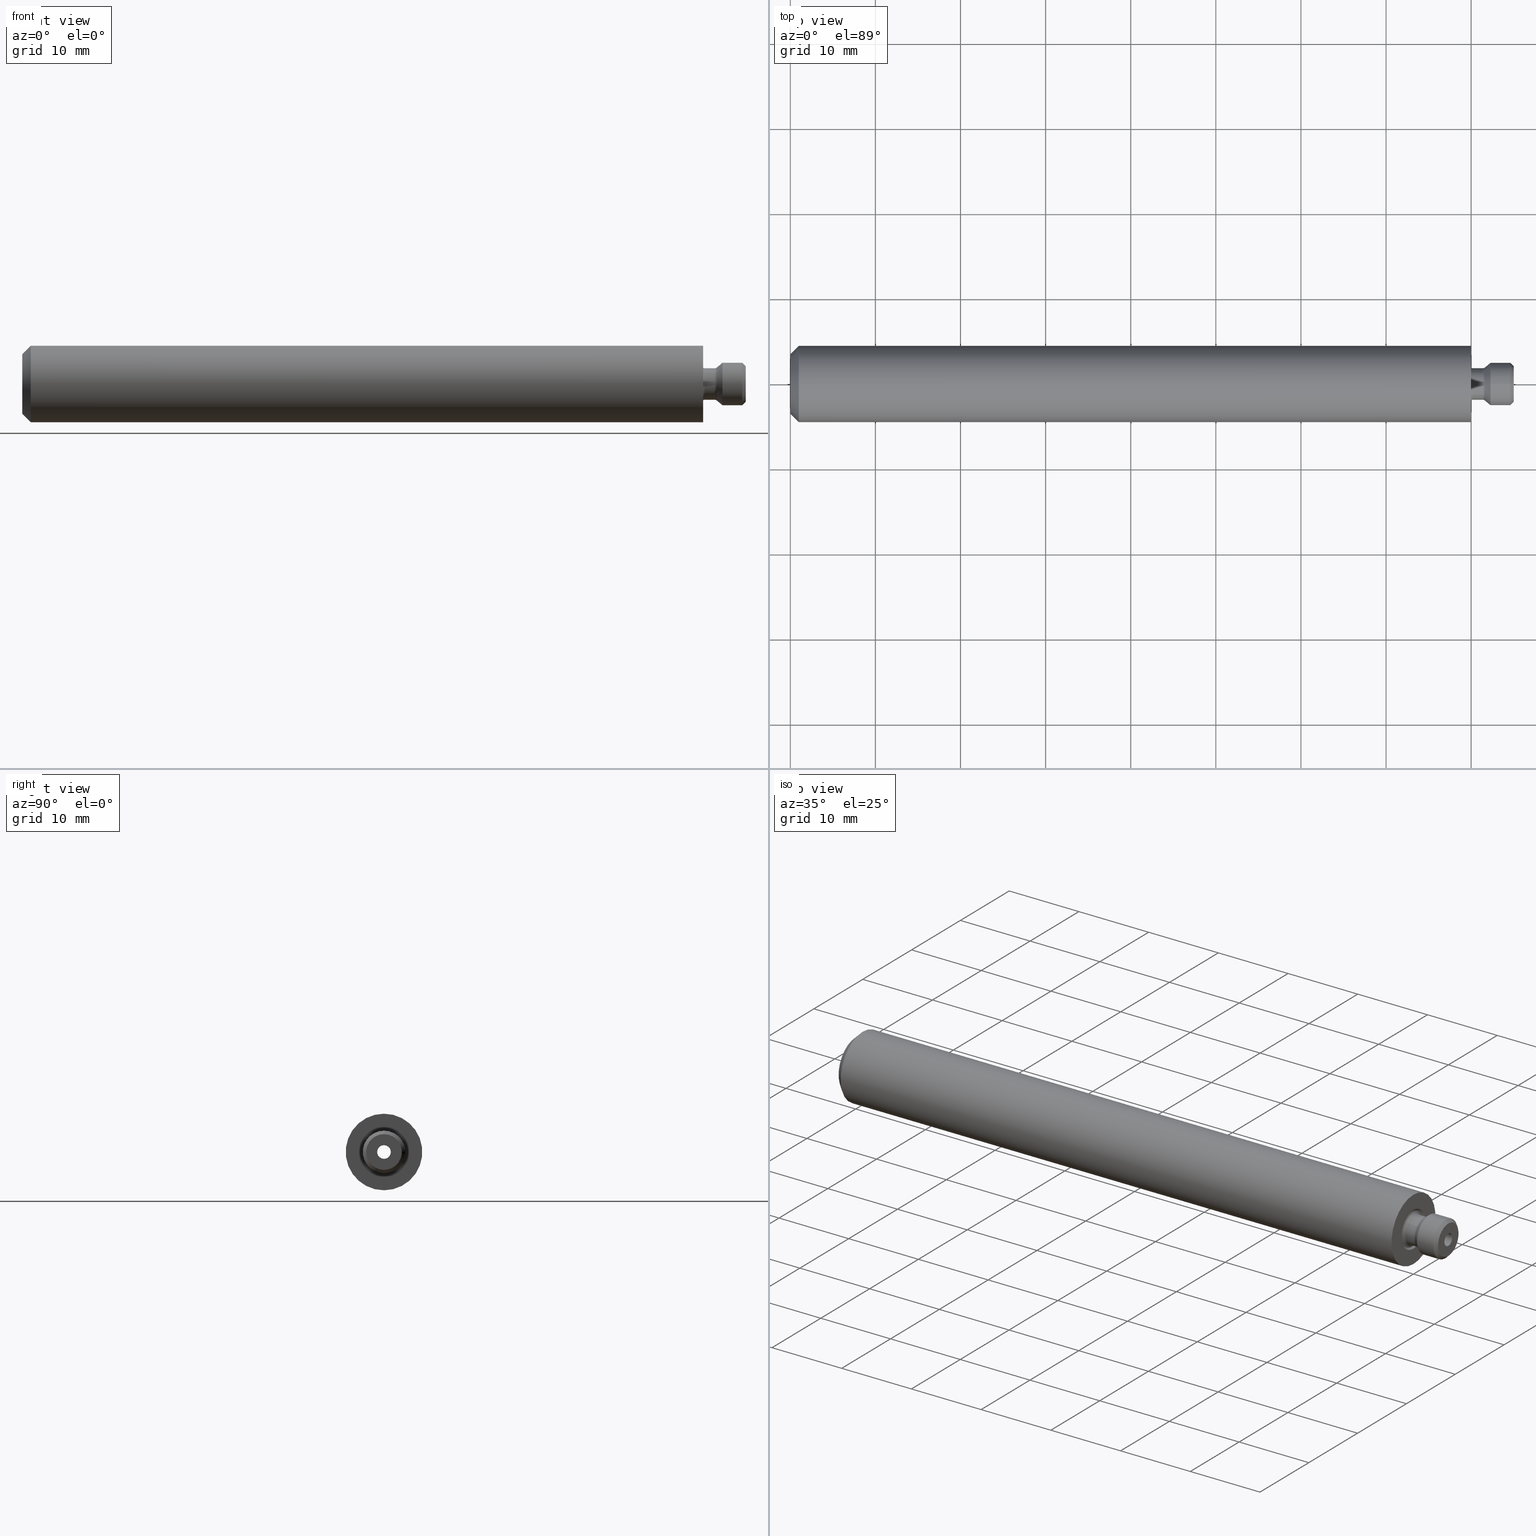
[diagram: canonical four-view strip — front | top / right | iso, engineering-drawing reading convention]
A machine part, canonical four-view strip (front | top / right | iso — engineering-drawing reading convention). The complete STEP part file that produces these views, byte-faithful:
ISO-10303-21;
HEADER;
FILE_DESCRIPTION (( 'STEP AP214' ),
    '1' );
FILE_NAME ('U09.HS5.K01.080.STEP',
    '2020-08-14T10:52:24',
    ( '' ),
    ( '' ),
    'SwSTEP 2.0',
    'SolidWorks 2017',
    '' );
FILE_SCHEMA (( 'AUTOMOTIVE_DESIGN' ));
ENDSEC;

DATA;
#1 = CONICAL_SURFACE ( 'NONE', #236, 2.749999999999999600, 0.6981317007977331200 ) ;
#2 = CIRCLE ( 'NONE', #95, 1.499999999999989100 ) ;
#3 = CIRCLE ( 'NONE', #363, 1.849999999999999600 ) ;
#4 = AXIS2_PLACEMENT_3D ( 'NONE', #130, #169, #480 ) ;
#5 = AXIS2_PLACEMENT_3D ( 'NONE', #137, #349, #213 ) ;
#6 = VERTEX_POINT ( 'NONE', #186 ) ;
#7 = EDGE_CURVE ( 'NONE', #263, #263, #289, .T. ) ;
#8 = ORIENTED_EDGE ( 'NONE', *, *, #82, .F. ) ;
#9 = ITEM_DEFINED_TRANSFORMATION ( 'NONE', 'NONE', #5,  #445 ) ;
#10 = FACE_OUTER_BOUND ( 'NONE', #505, .T. ) ;
#11 = FACE_OUTER_BOUND ( 'NONE', #314, .T. ) ;
#12 =( LENGTH_UNIT ( ) NAMED_UNIT ( * ) SI_UNIT ( .MILLI., .METRE. ) );
#13 = CARTESIAN_POINT ( 'NONE',  ( -6.375198412698429400, 0.0000000000000000000, 0.0000000000000000000 ) ) ;
#14 = EDGE_CURVE ( 'NONE', #325, #325, #271, .T. ) ;
#15 =( NAMED_UNIT ( * ) PLANE_ANGLE_UNIT ( ) SI_UNIT ( $, .RADIAN. ) );
#16 = DIRECTION ( 'NONE',  ( 0.0000000000000000000, 0.0000000000000000000, 1.000000000000000000 ) ) ;
#17 = CIRCLE ( 'NONE', #221, 3.499999999999998700 ) ;
#18 = CARTESIAN_POINT ( 'NONE',  ( 0.0000000000000000000, 0.0000000000000000000, 0.0000000000000000000 ) ) ;
#19 = DIRECTION ( 'NONE',  ( 1.000000000000000000, -0.0000000000000000000, -0.0000000000000000000 ) ) ;
#20 = CARTESIAN_POINT ( 'NONE',  ( 0.0000000000000000000, 0.0000000000000000000, 0.0000000000000000000 ) ) ;
#21 = APPLICATION_CONTEXT ( 'automotive_design' ) ;
#22 = CARTESIAN_POINT ( 'NONE',  ( 0.0000000000000000000, 0.0000000000000000000, 0.0000000000000000000 ) ) ;
#23 = ADVANCED_FACE ( 'NONE', ( #203, #522 ), #143, .T. ) ;
#24 = VERTEX_POINT ( 'NONE', #226 ) ;
#25 = CARTESIAN_POINT ( 'NONE',  ( -80.00000000000000000, 0.0000000000000000000, -3.499999999999998700 ) ) ;
#26 = DIRECTION ( 'NONE',  ( 0.0000000000000000000, 0.0000000000000000000, -1.000000000000000000 ) ) ;
#27 = CARTESIAN_POINT ( 'NONE',  ( -79.00000000000000000, 0.0000000000000000000, 0.0000000000000000000 ) ) ;
#28 = ADVANCED_FACE ( 'NONE', ( #156, #365 ), #284, .F. ) ;
#29 = CARTESIAN_POINT ( 'NONE',  ( 13.20000000000000100, -8.561394386620124000E-051, -1.071191604151549400E-047 ) ) ;
#30 = EDGE_LOOP ( 'NONE', ( #474 ) ) ;
#31 = DIRECTION ( 'NONE',  ( 1.000000000000000000, -0.0000000000000000000, -0.0000000000000000000 ) ) ;
#32 = VERTEX_POINT ( 'NONE', #408 ) ;
#33 = EDGE_LOOP ( 'NONE', ( #245 ) ) ;
#34 = FACE_OUTER_BOUND ( 'NONE', #257, .T. ) ;
#35 = VERTEX_POINT ( 'NONE', #494 ) ;
#36 = DIRECTION ( 'NONE',  ( 1.000000000000000000, -0.0000000000000000000, -0.0000000000000000000 ) ) ;
#37 = AXIS2_PLACEMENT_3D ( 'NONE', #297, #97, #51 ) ;
#38 = EDGE_CURVE ( 'NONE', #253, #253, #381, .T. ) ;
#39 = PRESENTATION_STYLE_ASSIGNMENT (( #456 ) ) ;
#40 = ORIENTED_EDGE ( 'NONE', *, *, #478, .F. ) ;
#41 = DIRECTION ( 'NONE',  ( 1.000000000000000000, -0.0000000000000000000, -0.0000000000000000000 ) ) ;
#42 = EDGE_LOOP ( 'NONE', ( #217 ) ) ;
#43 = AXIS2_PLACEMENT_3D ( 'NONE', #513, #120, #202 ) ;
#44 = CIRCLE ( 'NONE', #507, 1.943582222752408900 ) ;
#45 = CIRCLE ( 'NONE', #125, 0.7999999999999997100 ) ;
#46 = PRODUCT_DEFINITION_SHAPE ( 'NONE', 'NONE',  #307 ) ;
#47 =( GEOMETRIC_REPRESENTATION_CONTEXT ( 3 ) GLOBAL_UNCERTAINTY_ASSIGNED_CONTEXT ( ( #145 ) ) GLOBAL_UNIT_ASSIGNED_CONTEXT ( ( #181, #15, #446 ) ) REPRESENTATION_CONTEXT ( 'NONE', 'WORKASPACE' ) );
#48 = EDGE_CURVE ( 'NONE', #32, #32, #2, .T. ) ;
#49 = CIRCLE ( 'NONE', #403, 4.499999999999988500 ) ;
#50 = FACE_OUTER_BOUND ( 'NONE', #439, .T. ) ;
#51 = DIRECTION ( 'NONE',  ( 1.000000000000000000, 0.0000000000000000000, 0.0000000000000000000 ) ) ;
#52 = DIRECTION ( 'NONE',  ( 0.0000000000000000000, 0.0000000000000000000, 1.000000000000000000 ) ) ;
#53 = ORIENTED_EDGE ( 'NONE', *, *, #122, .T. ) ;
#54 = APPLICATION_CONTEXT ( 'automotive_design' ) ;
#55 = DIRECTION ( 'NONE',  ( 0.0000000000000000000, 0.0000000000000000000, 1.000000000000000000 ) ) ;
#56 = COLOUR_RGB ( '',0.6470588235294118000, 0.6196078431372549200, 0.5882352941176470800 ) ;
#57 = EDGE_LOOP ( 'NONE', ( #40 ) ) ;
#58 =( NAMED_UNIT ( * ) PLANE_ANGLE_UNIT ( ) SI_UNIT ( $, .RADIAN. ) );
#59 = AXIS2_PLACEMENT_3D ( 'NONE', #81, #199, #419 ) ;
#60 = FILL_AREA_STYLE ('',( #476 ) ) ;
#61 = PRESENTATION_STYLE_ASSIGNMENT (( #435 ) ) ;
#62 = DIRECTION ( 'NONE',  ( 0.0000000000000000000, 0.0000000000000000000, -1.000000000000000000 ) ) ;
#63 = DIRECTION ( 'NONE',  ( 1.000000000000000000, 0.0000000000000000000, 0.0000000000000000000 ) ) ;
#64 = ADVANCED_FACE ( 'NONE', ( #11, #50 ), #332, .T. ) ;
#65 = ADVANCED_FACE ( 'NONE', ( #230, #211 ), #322, .F. ) ;
#66 = CARTESIAN_POINT ( 'NONE',  ( -6.375198412698429400, 0.0000000000000000000, 0.0000000000000000000 ) ) ;
#67 =( NAMED_UNIT ( * ) SI_UNIT ( $, .STERADIAN. ) SOLID_ANGLE_UNIT ( ) );
#68 = CIRCLE ( 'NONE', #475, 2.250000000000000000 ) ;
#69 = ORIENTED_EDGE ( 'NONE', *, *, #426, .T. ) ;
#70 = DIRECTION ( 'NONE',  ( 0.0000000000000000000, -0.7061899382197406300, -0.7080224369023902000 ) ) ;
#71 = DIRECTION ( 'NONE',  ( 1.000000000000000000, -0.0000000000000000000, -0.0000000000000000000 ) ) ;
#72 = CARTESIAN_POINT ( 'NONE',  ( 8.000000000000000000, 0.0000000000000000000, 2.499999999999999600 ) ) ;
#73 = FACE_BOUND ( 'NONE', #33, .T. ) ;
#74 = EDGE_LOOP ( 'NONE', ( #379 ) ) ;
#75 = AXIS2_PLACEMENT_3D ( 'NONE', #350, #216, #447 ) ;
#76 = SURFACE_SIDE_STYLE ('',( #424 ) ) ;
#77 = VERTEX_POINT ( 'NONE', #25 ) ;
#78 = UNCERTAINTY_MEASURE_WITH_UNIT (LENGTH_MEASURE( 1.000000000000000100E-005 ), #437, 'distance_accuracy_value', 'NONE');
#79 = ORIENTED_EDGE ( 'NONE', *, *, #431, .F. ) ;
#80 = ORIENTED_EDGE ( 'NONE', *, *, #415, .F. ) ;
#81 = CARTESIAN_POINT ( 'NONE',  ( 8.000000000000000000, 0.0000000000000000000, 0.0000000000000000000 ) ) ;
#82 = EDGE_CURVE ( 'NONE', #472, #472, #452, .T. ) ;
#83 = DIRECTION ( 'NONE',  ( -1.000000000000000000, 0.0000000000000000000, 0.0000000000000000000 ) ) ;
#84 = CARTESIAN_POINT ( 'NONE',  ( 4.489025772856274800, -8.561394386620124000E-051, -1.071191604151549400E-047 ) ) ;
#85 = CIRCLE ( 'NONE', #162, 1.850000000000000100 ) ;
#86 = ORIENTED_EDGE ( 'NONE', *, *, #105, .F. ) ;
#87 = SURFACE_STYLE_FILL_AREA ( #299 ) ;
#88 = AXIS2_PLACEMENT_3D ( 'NONE', #367, #63, #323 ) ;
#89 = CARTESIAN_POINT ( 'NONE',  ( 0.0000000000000000000, 0.0000000000000000000, -4.499999999999988500 ) ) ;
#90 = EDGE_LOOP ( 'NONE', ( #69 ) ) ;
#91 = FACE_BOUND ( 'NONE', #198, .T. ) ;
#92 = CLOSED_SHELL ( 'NONE', ( #187, #65, #180, #223, #302, #269, #318, #317, #409, #23, #540, #404 ) ) ;
#93 =( NAMED_UNIT ( * ) PLANE_ANGLE_UNIT ( ) SI_UNIT ( $, .RADIAN. ) );
#94 = PRODUCT_DEFINITION_SHAPE ( 'NONE', 'NONE',  #166 ) ;
#95 = AXIS2_PLACEMENT_3D ( 'NONE', #241, #155, #466 ) ;
#96 = APPLICATION_CONTEXT ( 'automotive_design' ) ;
#97 = DIRECTION ( 'NONE',  ( 0.0000000000000000000, -0.7061899382197405200, 0.7080224369023900800 ) ) ;
#98 = PRODUCT_CONTEXT ( 'NONE', #215, 'mechanical' ) ;
#99 = DIRECTION ( 'NONE',  ( 0.0000000000000000000, 0.0000000000000000000, -1.000000000000000000 ) ) ;
#100 = EDGE_LOOP ( 'NONE', ( #79 ) ) ;
#101 = DIRECTION ( 'NONE',  ( 1.000000000000000000, 0.0000000000000000000, 0.0000000000000000000 ) ) ;
#102 =( REPRESENTATION_RELATIONSHIP ('NONE','NONE', #292, #485 ) REPRESENTATION_RELATIONSHIP_WITH_TRANSFORMATION ( #243 )SHAPE_REPRESENTATION_RELATIONSHIP( ) );
#103 = DIRECTION ( 'NONE',  ( -1.000000000000000000, 0.0000000000000000000, 0.0000000000000000000 ) ) ;
#104 = ADVANCED_FACE ( 'NONE', ( #127, #119 ), #484, .F. ) ;
#105 = EDGE_CURVE ( 'NONE', #376, #376, #154, .T. ) ;
#106 = CARTESIAN_POINT ( 'NONE',  ( -79.00000000000000000, 0.0000000000000000000, -4.499999999999988500 ) ) ;
#107 = DIRECTION ( 'NONE',  ( 0.0000000000000000000, 0.0000000000000000000, -1.000000000000000000 ) ) ;
#108 = DIRECTION ( 'NONE',  ( 0.0000000000000000000, 0.0000000000000000000, -1.000000000000000000 ) ) ;
#109 = FACE_BOUND ( 'NONE', #159, .T. ) ;
#110 = ORIENTED_EDGE ( 'NONE', *, *, #48, .T. ) ;
#111 = DIRECTION ( 'NONE',  ( 0.0000000000000000000, 0.0000000000000000000, 1.000000000000000000 ) ) ;
#112 =( NAMED_UNIT ( * ) SI_UNIT ( $, .STERADIAN. ) SOLID_ANGLE_UNIT ( ) );
#113 = PRODUCT_DEFINITION_SHAPE ( 'NONE', 'NONE',  #552 ) ;
#114 = SHAPE_DEFINITION_REPRESENTATION ( #46, #500 ) ;
#115 = AXIS2_PLACEMENT_3D ( 'NONE', #455, #144, #148 ) ;
#116 = PRESENTATION_STYLE_ASSIGNMENT (( #313 ) ) ;
#117 = DIRECTION ( 'NONE',  ( 0.0000000000000000000, 0.0000000000000000000, -1.000000000000000000 ) ) ;
#118 = FACE_OUTER_BOUND ( 'NONE', #150, .T. ) ;
#119 = FACE_OUTER_BOUND ( 'NONE', #538, .T. ) ;
#120 = DIRECTION ( 'NONE',  ( -1.000000000000000000, 0.0000000000000000000, 0.0000000000000000000 ) ) ;
#121 = PRODUCT_DEFINITION_SHAPE ( 'NONE', 'NONE',  #401 ) ;
#122 = EDGE_CURVE ( 'NONE', #305, #305, #45, .T. ) ;
#123 = SHAPE_REPRESENTATION_RELATIONSHIP ( 'NONE' , 'NONE' ,  #485, #389 ) ;
#124 = FACE_OUTER_BOUND ( 'NONE', #261, .T. ) ;
#125 = AXIS2_PLACEMENT_3D ( 'NONE', #220, #441, #491 ) ;
#126 = FACE_BOUND ( 'NONE', #42, .T. ) ;
#127 = FACE_OUTER_BOUND ( 'NONE', #345, .T. ) ;
#128 =( NAMED_UNIT ( * ) SI_UNIT ( $, .STERADIAN. ) SOLID_ANGLE_UNIT ( ) );
#129 = VERTEX_POINT ( 'NONE', #228 ) ;
#130 = CARTESIAN_POINT ( 'NONE',  ( 0.4000000000000010200, 0.0000000000000000000, 0.0000000000000000000 ) ) ;
#131 = EDGE_LOOP ( 'NONE', ( #164 ) ) ;
#132 = DIRECTION ( 'NONE',  ( 1.000000000000000000, 0.0000000000000000000, 0.0000000000000000000 ) ) ;
#133 = DIRECTION ( 'NONE',  ( 0.0000000000000000000, 0.0000000000000000000, 1.000000000000000000 ) ) ;
#134 = EDGE_LOOP ( 'NONE', ( #214 ) ) ;
#135 = FACE_OUTER_BOUND ( 'NONE', #481, .T. ) ;
#136 = TOROIDAL_SURFACE ( 'NONE', #290, 2.250000000000000400, 0.4000000000000000800 ) ;
#137 = CARTESIAN_POINT ( 'NONE',  ( 0.0000000000000000000, 0.0000000000000000000, 0.0000000000000000000 ) ) ;
#138 = APPLICATION_PROTOCOL_DEFINITION ( 'draft international standard', 'automotive_design', 1998, #96 ) ;
#139 = PLANE ( 'NONE',  #204 ) ;
#140 = ADVANCED_FACE ( 'NONE', ( #434, #548 ), #139, .T. ) ;
#141 = FILL_AREA_STYLE_COLOUR ( '', #56 ) ;
#142 = CARTESIAN_POINT ( 'NONE',  ( -11.36051637141653400, 0.0000000000000000000, -1.499999999999997300 ) ) ;
#143 = CYLINDRICAL_SURFACE ( 'NONE', #550, 2.499999999999999100 ) ;
#144 = DIRECTION ( 'NONE',  ( 1.000000000000000000, -0.0000000000000000000, -0.0000000000000000000 ) ) ;
#145 = UNCERTAINTY_MEASURE_WITH_UNIT (LENGTH_MEASURE( 1.000000000000000100E-005 ), #181, 'distance_accuracy_value', 'NONE');
#146 = CARTESIAN_POINT ( 'NONE',  ( -80.00000000000000000, 0.0000000000000000000, 0.0000000000000000000 ) ) ;
#147 = VERTEX_POINT ( 'NONE', #407 ) ;
#148 = DIRECTION ( 'NONE',  ( 0.0000000000000000000, 0.0000000000000000000, -1.000000000000000000 ) ) ;
#149 = EDGE_LOOP ( 'NONE', ( #418 ) ) ;
#150 = EDGE_LOOP ( 'NONE', ( #324 ) ) ;
#151 = AXIS2_PLACEMENT_3D ( 'NONE', #22, #19, #62 ) ;
#152 = DIRECTION ( 'NONE',  ( 0.0000000000000000000, 0.7061899382197406300, 0.7080224369023902000 ) ) ;
#153 = FACE_OUTER_BOUND ( 'NONE', #508, .T. ) ;
#154 = CIRCLE ( 'NONE', #75, 2.499999999999999100 ) ;
#155 = DIRECTION ( 'NONE',  ( 1.000000000000000000, -0.0000000000000000000, -0.0000000000000000000 ) ) ;
#156 = FACE_OUTER_BOUND ( 'NONE', #168, .T. ) ;
#157 = DIRECTION ( 'NONE',  ( 0.0000000000000000000, 0.7061899382197406300, 0.7080224369023902000 ) ) ;
#158 = FACE_OUTER_BOUND ( 'NONE', #57, .T. ) ;
#159 = EDGE_LOOP ( 'NONE', ( #520 ) ) ;
#160 = PRODUCT_DEFINITION_FORMATION_WITH_SPECIFIED_SOURCE ( 'ANY', '', #234, .NOT_KNOWN. ) ;
#161 = SURFACE_STYLE_FILL_AREA ( #60 ) ;
#162 = AXIS2_PLACEMENT_3D ( 'NONE', #321, #184, #311 ) ;
#163 = ADVANCED_BREP_SHAPE_REPRESENTATION ( '', ( #537, #445 ), #47 ) ;
#164 = ORIENTED_EDGE ( 'NONE', *, *, #48, .F. ) ;
#165 = ORIENTED_EDGE ( 'NONE', *, *, #461, .F. ) ;
#166 = PRODUCT_DEFINITION ( 'UNKNOWN', '', #194, #338 ) ;
#167 =( LENGTH_UNIT ( ) NAMED_UNIT ( * ) SI_UNIT ( .MILLI., .METRE. ) );
#168 = EDGE_LOOP ( 'NONE', ( #396 ) ) ;
#169 = DIRECTION ( 'NONE',  ( -1.000000000000000000, 0.0000000000000000000, 0.0000000000000000000 ) ) ;
#170 = CYLINDRICAL_SURFACE ( 'NONE', #450, 1.849999999999999900 ) ;
#171 = ORIENTED_EDGE ( 'NONE', *, *, #273, .T. ) ;
#172 = AXIS2_PLACEMENT_3D ( 'NONE', #529, #262, #178 ) ;
#173 = APPLICATION_CONTEXT ( 'automotive_design' ) ;
#174 = APPLICATION_PROTOCOL_DEFINITION ( 'draft international standard', 'automotive_design', 1998, #54 ) ;
#175 = DIRECTION ( 'NONE',  ( 1.000000000000000000, 0.0000000000000000000, 0.0000000000000000000 ) ) ;
#176 = MECHANICAL_DESIGN_GEOMETRIC_PRESENTATION_REPRESENTATION (  '', ( #457 ), #293 ) ;
#177 = SURFACE_SIDE_STYLE ('',( #161 ) ) ;
#178 = DIRECTION ( 'NONE',  ( 0.0000000000000000000, 0.0000000000000000000, -1.000000000000000000 ) ) ;
#179 =( NAMED_UNIT ( * ) PLANE_ANGLE_UNIT ( ) SI_UNIT ( $, .RADIAN. ) );
#180 = ADVANCED_FACE ( 'NONE', ( #372, #249 ), #136, .F. ) ;
#181 =( LENGTH_UNIT ( ) NAMED_UNIT ( * ) SI_UNIT ( .MILLI., .METRE. ) );
#182 = EDGE_LOOP ( 'NONE', ( #391 ) ) ;
#183 = DIRECTION ( 'NONE',  ( 0.0000000000000000000, 0.0000000000000000000, 1.000000000000000000 ) ) ;
#184 = DIRECTION ( 'NONE',  ( -1.000000000000000000, 0.0000000000000000000, 0.0000000000000000000 ) ) ;
#185 = EDGE_CURVE ( 'NONE', #6, #6, #3, .T. ) ;
#186 = CARTESIAN_POINT ( 'NONE',  ( 9.554411906293518400, 0.0000000000000000000, 1.849999999999999600 ) ) ;
#187 = ADVANCED_FACE ( 'NONE', ( #109, #118 ), #1, .T. ) ;
#188 = PLANE ( 'NONE',  #514 ) ;
#189 = PLANE ( 'NONE',  #88 ) ;
#190 = ORIENTED_EDGE ( 'NONE', *, *, #454, .T. ) ;
#191 = CIRCLE ( 'NONE', #331, 2.499999999999999100 ) ;
#192 = EDGE_LOOP ( 'NONE', ( #280 ) ) ;
#193 = DIRECTION ( 'NONE',  ( 0.0000000000000000000, 0.0000000000000000000, -1.000000000000000000 ) ) ;
#194 = PRODUCT_DEFINITION_FORMATION_WITH_SPECIFIED_SOURCE ( 'ANY', '', #460, .NOT_KNOWN. ) ;
#195 = VERTEX_POINT ( 'NONE', #541 ) ;
#196 = AXIS2_PLACEMENT_3D ( 'NONE', #359, #103, #503 ) ;
#197 = ORIENTED_EDGE ( 'NONE', *, *, #478, .T. ) ;
#198 = EDGE_LOOP ( 'NONE', ( #219 ) ) ;
#199 = DIRECTION ( 'NONE',  ( -1.000000000000000000, 0.0000000000000000000, 0.0000000000000000000 ) ) ;
#200 = CARTESIAN_POINT ( 'NONE',  ( 11.08730158730159100, 0.0000000000000000000, 0.0000000000000000000 ) ) ;
#201 = ORIENTED_EDGE ( 'NONE', *, *, #7, .T. ) ;
#202 = DIRECTION ( 'NONE',  ( 0.0000000000000000000, 0.0000000000000000000, 1.000000000000000000 ) ) ;
#203 = FACE_OUTER_BOUND ( 'NONE', #74, .T. ) ;
#204 = AXIS2_PLACEMENT_3D ( 'NONE', #495, #487, #443 ) ;
#205 = PRODUCT_DEFINITION_CONTEXT ( 'detailed design', #21, 'design' ) ;
#206 = STYLED_ITEM ( 'NONE', ( #61 ), #389 ) ;
#207 = EDGE_LOOP ( 'NONE', ( #310 ) ) ;
#208 = COLOUR_RGB ( '',0.4941176470588235500, 0.4941176470588235500, 0.4941176470588235500 ) ;
#209 = AXIS2_PLACEMENT_3D ( 'NONE', #533, #309, #183 ) ;
#210 = CONICAL_SURFACE ( 'NONE', #521, 2.099999999999999600, 0.7853981633974505000 ) ;
#211 = FACE_OUTER_BOUND ( 'NONE', #512, .T. ) ;
#212 =( NAMED_UNIT ( * ) SI_UNIT ( $, .STERADIAN. ) SOLID_ANGLE_UNIT ( ) );
#213 = DIRECTION ( 'NONE',  ( 1.000000000000000000, 0.0000000000000000000, 0.0000000000000000000 ) ) ;
#214 = ORIENTED_EDGE ( 'NONE', *, *, #38, .F. ) ;
#215 = APPLICATION_CONTEXT ( 'automotive_design' ) ;
#216 = DIRECTION ( 'NONE',  ( -1.000000000000000000, 0.0000000000000000000, 0.0000000000000000000 ) ) ;
#217 = ORIENTED_EDGE ( 'NONE', *, *, #393, .T. ) ;
#218 =( NAMED_UNIT ( * ) PLANE_ANGLE_UNIT ( ) SI_UNIT ( $, .RADIAN. ) );
#219 = ORIENTED_EDGE ( 'NONE', *, *, #392, .T. ) ;
#220 = CARTESIAN_POINT ( 'NONE',  ( 0.0000000000000000000, 0.0000000000000000000, 0.0000000000000000000 ) ) ;
#221 = AXIS2_PLACEMENT_3D ( 'NONE', #146, #410, #492 ) ;
#222 = CARTESIAN_POINT ( 'NONE',  ( 9.554411906293518400, 0.0000000000000000000, 0.0000000000000000000 ) ) ;
#223 = ADVANCED_FACE ( 'NONE', ( #153, #483 ), #170, .T. ) ;
#224 = CARTESIAN_POINT ( 'NONE',  ( 13.20000000000000100, -8.561394386620124000E-051, -1.071191604151549400E-047 ) ) ;
#225 = UNCERTAINTY_MEASURE_WITH_UNIT (LENGTH_MEASURE( 1.000000000000000100E-005 ), #532, 'distance_accuracy_value', 'NONE');
#226 = CARTESIAN_POINT ( 'NONE',  ( 0.0000000000000000000, 0.0000000000000000000, -2.499999999999998700 ) ) ;
#227 = VERTEX_POINT ( 'NONE', #449 ) ;
#228 = CARTESIAN_POINT ( 'NONE',  ( -11.00000000000000000, 0.0000000000000000000, -2.099999999999997900 ) ) ;
#229 = CARTESIAN_POINT ( 'NONE',  ( 0.0000000000000000000, 0.0000000000000000000, 0.0000000000000000000 ) ) ;
#230 = FACE_OUTER_BOUND ( 'NONE', #182, .T. ) ;
#231 = PRODUCT_RELATED_PRODUCT_CATEGORY ( 'part', '', ( #234 ) ) ;
#232 = EDGE_LOOP ( 'NONE', ( #341 ) ) ;
#233 = CARTESIAN_POINT ( 'NONE',  ( 12.80000000000000100, -8.561394386620124000E-051, -1.071191604151549400E-047 ) ) ;
#234 = PRODUCT ( 'HM1-U09.001.080_A', 'HM1-U09.001.080_A', '', ( #259 ) ) ;
#235 = ORIENTED_EDGE ( 'NONE', *, *, #461, .T. ) ;
#236 = AXIS2_PLACEMENT_3D ( 'NONE', #315, #175, #400 ) ;
#237 = DIRECTION ( 'NONE',  ( -1.000000000000000000, 0.0000000000000000000, 0.0000000000000000000 ) ) ;
#238 = FACE_BOUND ( 'NONE', #499, .T. ) ;
#239 = PRESENTATION_LAYER_ASSIGNMENT (  '', '', ( #206 ) ) ;
#240 = DIRECTION ( 'NONE',  ( 0.0000000000000000000, 0.0000000000000000000, -1.000000000000000000 ) ) ;
#241 = CARTESIAN_POINT ( 'NONE',  ( -80.00000000000000000, 0.0000000000000000000, 0.0000000000000000000 ) ) ;
#242 = AXIS2_PLACEMENT_3D ( 'NONE', #343, #255, #16 ) ;
#243 = ITEM_DEFINED_TRANSFORMATION ( 'NONE', 'NONE', #37,  #445 ) ;
#244 = FACE_BOUND ( 'NONE', #527, .T. ) ;
#245 = ORIENTED_EDGE ( 'NONE', *, *, #327, .F. ) ;
#246 = VERTEX_POINT ( 'NONE', #319 ) ;
#247 = ORIENTED_EDGE ( 'NONE', *, *, #273, .F. ) ;
#248 = TOROIDAL_SURFACE ( 'NONE', #242, 2.250000000000000400, 0.3999999999999997400 ) ;
#249 = FACE_OUTER_BOUND ( 'NONE', #90, .T. ) ;
#250 = STYLED_ITEM ( 'NONE', ( #336 ), #471 ) ;
#251 = DIRECTION ( 'NONE',  ( -1.000000000000000000, 0.0000000000000000000, 0.0000000000000000000 ) ) ;
#252 = ORIENTED_EDGE ( 'NONE', *, *, #122, .F. ) ;
#253 = VERTEX_POINT ( 'NONE', #506 ) ;
#254 = APPLICATION_PROTOCOL_DEFINITION ( 'draft international standard', 'automotive_design', 1998, #215 ) ;
#255 = DIRECTION ( 'NONE',  ( -1.000000000000000000, 0.0000000000000000000, 0.0000000000000000000 ) ) ;
#256 = CIRCLE ( 'NONE', #348, 2.099999999999999600 ) ;
#257 = EDGE_LOOP ( 'NONE', ( #421 ) ) ;
#258 = AXIS2_PLACEMENT_3D ( 'NONE', #229, #366, #544 ) ;
#259 = PRODUCT_CONTEXT ( 'NONE', #96, 'mechanical' ) ;
#260 = PRODUCT_CONTEXT ( 'NONE', #173, 'mechanical' ) ;
#261 = EDGE_LOOP ( 'NONE', ( #165 ) ) ;
#262 = DIRECTION ( 'NONE',  ( 1.000000000000000000, -0.0000000000000000000, -0.0000000000000000000 ) ) ;
#263 = VERTEX_POINT ( 'NONE', #72 ) ;
#264 = CARTESIAN_POINT ( 'NONE',  ( -0.3999999999999975800, 0.0000000000000000000, 0.0000000000000000000 ) ) ;
#265 = DIRECTION ( 'NONE',  ( 0.0000000000000000000, 0.0000000000000000000, 1.000000000000000000 ) ) ;
#266 = CARTESIAN_POINT ( 'NONE',  ( 9.811526950168133300, 0.0000000000000000000, 0.0000000000000000000 ) ) ;
#267 = CARTESIAN_POINT ( 'NONE',  ( 13.20000000000000100, 1.482998870261454900, 1.486847117495019300 ) ) ;
#268 = CARTESIAN_POINT ( 'NONE',  ( -11.36051637141653400, 0.0000000000000000000, 0.0000000000000000000 ) ) ;
#269 = ADVANCED_FACE ( 'NONE', ( #511, #91 ), #524, .F. ) ;
#270 = CIRCLE ( 'NONE', #115, 1.499999999999997300 ) ;
#271 = CIRCLE ( 'NONE', #420, 0.7999999999999999300 ) ;
#272 = DIRECTION ( 'NONE',  ( 1.000000000000000000, -0.0000000000000000000, -0.0000000000000000000 ) ) ;
#273 = EDGE_CURVE ( 'NONE', #35, #35, #464, .T. ) ;
#274 = CARTESIAN_POINT ( 'NONE',  ( 8.000000000000000000, 0.0000000000000000000, 2.250000000000000000 ) ) ;
#275 = DIRECTION ( 'NONE',  ( 0.0000000000000000000, 0.0000000000000000000, -1.000000000000000000 ) ) ;
#276 = FILL_AREA_STYLE ('',( #141 ) ) ;
#277 = EDGE_LOOP ( 'NONE', ( #80 ) ) ;
#278 = DIRECTION ( 'NONE',  ( 1.000000000000000000, -0.0000000000000000000, -0.0000000000000000000 ) ) ;
#279 = CONICAL_SURFACE ( 'NONE', #295, 2.499999999999999600, 0.7853981633974466100 ) ;
#280 = ORIENTED_EDGE ( 'NONE', *, *, #393, .F. ) ;
#281 = FILL_AREA_STYLE_COLOUR ( '', #547 ) ;
#282 = PRESENTATION_LAYER_ASSIGNMENT (  '', '', ( #250 ) ) ;
#283 = DIRECTION ( 'NONE',  ( 0.0000000000000000000, 0.0000000000000000000, 1.000000000000000000 ) ) ;
#284 = CYLINDRICAL_SURFACE ( 'NONE', #377, 1.499999999999993300 ) ;
#285 = DIRECTION ( 'NONE',  ( 0.0000000000000000000, 0.0000000000000000000, -1.000000000000000000 ) ) ;
#286 = EDGE_LOOP ( 'NONE', ( #430 ) ) ;
#287 = PRODUCT_RELATED_PRODUCT_CATEGORY ( 'part', '', ( #460 ) ) ;
#288 = FACE_OUTER_BOUND ( 'NONE', #488, .T. ) ;
#289 = CIRCLE ( 'NONE', #59, 2.499999999999999600 ) ;
#290 = AXIS2_PLACEMENT_3D ( 'NONE', #222, #306, #52 ) ;
#291 = COLOUR_RGB ( '',0.6470588235294118000, 0.6196078431372549200, 0.5882352941176470800 ) ;
#292 = SHAPE_REPRESENTATION ( 'U09.HS5.K01.080', ( #428, #5, #37 ), #334 ) ;
#293 =( GEOMETRIC_REPRESENTATION_CONTEXT ( 3 ) GLOBAL_UNCERTAINTY_ASSIGNED_CONTEXT ( ( #339 ) ) GLOBAL_UNIT_ASSIGNED_CONTEXT ( ( #167, #58, #212 ) ) REPRESENTATION_CONTEXT ( 'NONE', 'WORKASPACE' ) );
#294 = EDGE_LOOP ( 'NONE', ( #405 ) ) ;
#295 = AXIS2_PLACEMENT_3D ( 'NONE', #301, #346, #99 ) ;
#296 = EDGE_LOOP ( 'NONE', ( #190 ) ) ;
#297 = CARTESIAN_POINT ( 'NONE',  ( -8.200000000000001100, -7.558585668255975900E-048, 7.590322870180568200E-048 ) ) ;
#298 = EDGE_LOOP ( 'NONE', ( #86 ) ) ;
#299 = FILL_AREA_STYLE ('',( #399 ) ) ;
#300 = PRODUCT_DEFINITION_SHAPE ( 'NONE', 'NONE',  #551 ) ;
#301 = CARTESIAN_POINT ( 'NONE',  ( 0.4000000000000010200, 0.0000000000000000000, 0.0000000000000000000 ) ) ;
#302 = ADVANCED_FACE ( 'NONE', ( #498, #383 ), #248, .F. ) ;
#303 = PRESENTATION_LAYER_ASSIGNMENT (  '', '', ( #398 ) ) ;
#304 = DIRECTION ( 'NONE',  ( 1.000000000000000000, 0.0000000000000000000, 0.0000000000000000000 ) ) ;
#305 = VERTEX_POINT ( 'NONE', #360 ) ;
#306 = DIRECTION ( 'NONE',  ( -1.000000000000000000, 0.0000000000000000000, 0.0000000000000000000 ) ) ;
#307 = PRODUCT_DEFINITION ( 'UNKNOWN', '', #160, #205 ) ;
#308 =( REPRESENTATION_RELATIONSHIP ('NONE','NONE', #292, #500 ) REPRESENTATION_RELATIONSHIP_WITH_TRANSFORMATION ( #9 )SHAPE_REPRESENTATION_RELATIONSHIP( ) );
#309 = DIRECTION ( 'NONE',  ( -1.000000000000000000, 0.0000000000000000000, 0.0000000000000000000 ) ) ;
#310 = ORIENTED_EDGE ( 'NONE', *, *, #392, .F. ) ;
#311 = DIRECTION ( 'NONE',  ( 0.0000000000000000000, 0.0000000000000000000, 1.000000000000000000 ) ) ;
#312 = MECHANICAL_DESIGN_GEOMETRIC_PRESENTATION_REPRESENTATION (  '', ( #250 ), #337 ) ;
#313 = SURFACE_STYLE_USAGE ( .BOTH. , #523 ) ;
#314 = EDGE_LOOP ( 'NONE', ( #197 ) ) ;
#315 = CARTESIAN_POINT ( 'NONE',  ( 10.77257823333478400, 0.0000000000000000000, 0.0000000000000000000 ) ) ;
#316 = SURFACE_STYLE_USAGE ( .BOTH. , #448 ) ;
#317 = ADVANCED_FACE ( 'NONE', ( #73, #10 ), #279, .T. ) ;
#318 = ADVANCED_FACE ( 'NONE', ( #135, #288 ), #504, .T. ) ;
#319 = CARTESIAN_POINT ( 'NONE',  ( 10.47463983518623100, -1.765474845549351000, -1.770056092255974900 ) ) ;
#320 = DIRECTION ( 'NONE',  ( 1.000000000000000000, 0.0000000000000000000, 0.0000000000000000000 ) ) ;
#321 = CARTESIAN_POINT ( 'NONE',  ( 8.400000000000000400, 0.0000000000000000000, 0.0000000000000000000 ) ) ;
#322 = CYLINDRICAL_SURFACE ( 'NONE', #43, 0.7999999999999997100 ) ;
#323 = DIRECTION ( 'NONE',  ( 0.0000000000000000000, -0.7061899382197406300, -0.7080224369023902000 ) ) ;
#324 = ORIENTED_EDGE ( 'NONE', *, *, #385, .F. ) ;
#325 = VERTEX_POINT ( 'NONE', #438 ) ;
#326 = CLOSED_SHELL ( 'NONE', ( #28, #436, #496, #64, #140, #489, #104, #347 ) ) ;
#327 = EDGE_CURVE ( 'NONE', #147, #147, #380, .T. ) ;
#328 =( NAMED_UNIT ( * ) PLANE_ANGLE_UNIT ( ) SI_UNIT ( $, .RADIAN. ) );
#329 = AXIS2_PLACEMENT_3D ( 'NONE', #27, #411, #453 ) ;
#330 = UNCERTAINTY_MEASURE_WITH_UNIT (LENGTH_MEASURE( 1.000000000000000100E-005 ), #12, 'distance_accuracy_value', 'NONE');
#331 = AXIS2_PLACEMENT_3D ( 'NONE', #542, #320, #70 ) ;
#332 = CYLINDRICAL_SURFACE ( 'NONE', #531, 4.499999999999988500 ) ;
#333 =( GEOMETRIC_REPRESENTATION_CONTEXT ( 3 ) GLOBAL_UNCERTAINTY_ASSIGNED_CONTEXT ( ( #330 ) ) GLOBAL_UNIT_ASSIGNED_CONTEXT ( ( #12, #394, #128 ) ) REPRESENTATION_CONTEXT ( 'NONE', 'WORKASPACE' ) );
#334 =( GEOMETRIC_REPRESENTATION_CONTEXT ( 3 ) GLOBAL_UNCERTAINTY_ASSIGNED_CONTEXT ( ( #225 ) ) GLOBAL_UNIT_ASSIGNED_CONTEXT ( ( #532, #218, #528 ) ) REPRESENTATION_CONTEXT ( 'NONE', 'WORKASPACE' ) );
#335 = CONTEXT_DEPENDENT_SHAPE_REPRESENTATION ( #308, #300 ) ;
#336 = PRESENTATION_STYLE_ASSIGNMENT (( #316 ) ) ;
#337 =( GEOMETRIC_REPRESENTATION_CONTEXT ( 3 ) GLOBAL_UNCERTAINTY_ASSIGNED_CONTEXT ( ( #432 ) ) GLOBAL_UNIT_ASSIGNED_CONTEXT ( ( #444, #179, #67 ) ) REPRESENTATION_CONTEXT ( 'NONE', 'WORKASPACE' ) );
#338 = PRODUCT_DEFINITION_CONTEXT ( 'detailed design', #530, 'design' ) ;
#339 = UNCERTAINTY_MEASURE_WITH_UNIT (LENGTH_MEASURE( 1.000000000000000100E-005 ), #167, 'distance_accuracy_value', 'NONE');
#340 = FACE_OUTER_BOUND ( 'NONE', #286, .T. ) ;
#341 = ORIENTED_EDGE ( 'NONE', *, *, #14, .T. ) ;
#342 = DIRECTION ( 'NONE',  ( 0.0000000000000000000, 0.0000000000000000000, 1.000000000000000000 ) ) ;
#343 = CARTESIAN_POINT ( 'NONE',  ( 8.400000000000000400, 0.0000000000000000000, 0.0000000000000000000 ) ) ;
#344 = DIRECTION ( 'NONE',  ( 1.000000000000000000, 0.0000000000000000000, 0.0000000000000000000 ) ) ;
#345 = EDGE_LOOP ( 'NONE', ( #425 ) ) ;
#346 = DIRECTION ( 'NONE',  ( 1.000000000000000000, 0.0000000000000000000, 0.0000000000000000000 ) ) ;
#347 = ADVANCED_FACE ( 'NONE', ( #34, #469 ), #390, .F. ) ;
#348 = AXIS2_PLACEMENT_3D ( 'NONE', #224, #502, #406 ) ;
#349 = DIRECTION ( 'NONE',  ( 0.0000000000000000000, 0.0000000000000000000, 1.000000000000000000 ) ) ;
#350 = CARTESIAN_POINT ( 'NONE',  ( 12.80000000000000100, -8.561394386620124000E-051, -1.071191604151549400E-047 ) ) ;
#351 = FACE_OUTER_BOUND ( 'NONE', #192, .T. ) ;
#352 = DIRECTION ( 'NONE',  ( 0.0000000000000000000, 0.0000000000000000000, 1.000000000000000000 ) ) ;
#353 = DIRECTION ( 'NONE',  ( -1.000000000000000000, 0.0000000000000000000, 0.0000000000000000000 ) ) ;
#354 = DIRECTION ( 'NONE',  ( 0.0000000000000000000, 0.0000000000000000000, -1.000000000000000000 ) ) ;
#355 = AXIS2_PLACEMENT_3D ( 'NONE', #413, #278, #193 ) ;
#356 = DIRECTION ( 'NONE',  ( 0.0000000000000000000, 0.0000000000000000000, 1.000000000000000000 ) ) ;
#357 = VERTEX_POINT ( 'NONE', #106 ) ;
#358 = DIRECTION ( 'NONE',  ( -1.000000000000000000, 0.0000000000000000000, 0.0000000000000000000 ) ) ;
#359 = CARTESIAN_POINT ( 'NONE',  ( -80.00000000000000000, 1.499999999999989100, 0.0000000000000000000 ) ) ;
#360 = CARTESIAN_POINT ( 'NONE',  ( 0.0000000000000000000, 0.0000000000000000000, 0.7999999999999997100 ) ) ;
#361 = DIRECTION ( 'NONE',  ( 1.000000000000000000, -0.0000000000000000000, -0.0000000000000000000 ) ) ;
#362 = CARTESIAN_POINT ( 'NONE',  ( 0.0000000000000000000, 0.7999999999999997100, -1.071191604151549400E-047 ) ) ;
#363 = AXIS2_PLACEMENT_3D ( 'NONE', #536, #353, #265 ) ;
#364 = FACE_BOUND ( 'NONE', #134, .T. ) ;
#365 = FACE_OUTER_BOUND ( 'NONE', #131, .T. ) ;
#366 = DIRECTION ( 'NONE',  ( -1.000000000000000000, 0.0000000000000000000, 0.0000000000000000000 ) ) ;
#367 = CARTESIAN_POINT ( 'NONE',  ( 13.20000000000000100, -1.482998870261454900, -1.486847117495019700 ) ) ;
#368 = AXIS2_PLACEMENT_3D ( 'NONE', #268, #361, #26 ) ;
#369 = DIRECTION ( 'NONE',  ( -1.000000000000000000, 0.0000000000000000000, 0.0000000000000000000 ) ) ;
#370 = VERTEX_POINT ( 'NONE', #267 ) ;
#371 = FACE_BOUND ( 'NONE', #232, .T. ) ;
#372 = FACE_OUTER_BOUND ( 'NONE', #30, .T. ) ;
#373 =( GEOMETRIC_REPRESENTATION_CONTEXT ( 3 ) GLOBAL_UNCERTAINTY_ASSIGNED_CONTEXT ( ( #375 ) ) GLOBAL_UNIT_ASSIGNED_CONTEXT ( ( #549, #328, #112 ) ) REPRESENTATION_CONTEXT ( 'NONE', 'WORKASPACE' ) );
#374 = FILL_AREA_STYLE ('',( #281 ) ) ;
#375 = UNCERTAINTY_MEASURE_WITH_UNIT (LENGTH_MEASURE( 1.000000000000000100E-005 ), #549, 'distance_accuracy_value', 'NONE');
#376 = VERTEX_POINT ( 'NONE', #543 ) ;
#377 = AXIS2_PLACEMENT_3D ( 'NONE', #422, #36, #240 ) ;
#378 = DIRECTION ( 'NONE',  ( -1.000000000000000000, 0.0000000000000000000, 0.0000000000000000000 ) ) ;
#379 = ORIENTED_EDGE ( 'NONE', *, *, #105, .T. ) ;
#380 = CIRCLE ( 'NONE', #258, 2.100000000000000100 ) ;
#381 = CIRCLE ( 'NONE', #493, 2.099999999999999600 ) ;
#382 = SHAPE_REPRESENTATION_RELATIONSHIP ( 'NONE' , 'NONE' ,  #500, #163 ) ;
#383 = FACE_OUTER_BOUND ( 'NONE', #296, .T. ) ;
#384 = EDGE_LOOP ( 'NONE', ( #525 ) ) ;
#385 = EDGE_CURVE ( 'NONE', #246, #246, #191, .T. ) ;
#386 = VERTEX_POINT ( 'NONE', #142 ) ;
#387 = MECHANICAL_DESIGN_GEOMETRIC_PRESENTATION_REPRESENTATION (  '', ( #206 ), #417 ) ;
#388 = SHAPE_DEFINITION_REPRESENTATION ( #94, #485 ) ;
#389 = ADVANCED_BREP_SHAPE_REPRESENTATION ( '', ( #471, #445 ), #333 ) ;
#390 = CONICAL_SURFACE ( 'NONE', #368, 1.499999999999997300, 1.029744258676656500 ) ;
#391 = ORIENTED_EDGE ( 'NONE', *, *, #14, .F. ) ;
#392 = EDGE_CURVE ( 'NONE', #477, #477, #68, .T. ) ;
#393 = EDGE_CURVE ( 'NONE', #370, #370, #256, .T. ) ;
#394 =( NAMED_UNIT ( * ) PLANE_ANGLE_UNIT ( ) SI_UNIT ( $, .RADIAN. ) );
#395 = CIRCLE ( 'NONE', #355, 2.099999999999997900 ) ;
#396 = ORIENTED_EDGE ( 'NONE', *, *, #431, .T. ) ;
#397 = DIRECTION ( 'NONE',  ( -1.000000000000000000, 0.0000000000000000000, 0.0000000000000000000 ) ) ;
#398 = STYLED_ITEM ( 'NONE', ( #39 ), #537 ) ;
#399 = FILL_AREA_STYLE_COLOUR ( '', #208 ) ;
#400 = DIRECTION ( 'NONE',  ( 0.0000000000000000000, 0.0000000000000000000, -1.000000000000000000 ) ) ;
#401 = PRODUCT_DEFINITION ( 'UNKNOWN', '', #467, #546 ) ;
#402 = APPLICATION_PROTOCOL_DEFINITION ( 'draft international standard', 'automotive_design', 1998, #530 ) ;
#403 = AXIS2_PLACEMENT_3D ( 'NONE', #545, #272, #108 ) ;
#404 = ADVANCED_FACE ( 'NONE', ( #371, #351 ), #189, .T. ) ;
#405 = ORIENTED_EDGE ( 'NONE', *, *, #327, .T. ) ;
#406 = DIRECTION ( 'NONE',  ( 0.0000000000000000000, 0.7061899382197405200, 0.7080224369023903100 ) ) ;
#407 = CARTESIAN_POINT ( 'NONE',  ( 0.0000000000000000000, 0.0000000000000000000, 2.100000000000000100 ) ) ;
#408 = CARTESIAN_POINT ( 'NONE',  ( -80.00000000000000000, 0.0000000000000000000, -1.499999999999989100 ) ) ;
#409 = ADVANCED_FACE ( 'NONE', ( #238, #519 ), #188, .F. ) ;
#410 = DIRECTION ( 'NONE',  ( 1.000000000000000000, -0.0000000000000000000, -0.0000000000000000000 ) ) ;
#411 = DIRECTION ( 'NONE',  ( 1.000000000000000000, -0.0000000000000000000, -0.0000000000000000000 ) ) ;
#412 = ORIENTED_EDGE ( 'NONE', *, *, #518, .F. ) ;
#413 = CARTESIAN_POINT ( 'NONE',  ( -11.00000000000000000, 0.0000000000000000000, 0.0000000000000000000 ) ) ;
#414 = ORIENTED_EDGE ( 'NONE', *, *, #454, .F. ) ;
#415 = EDGE_CURVE ( 'NONE', #24, #24, #458, .T. ) ;
#416 = EDGE_LOOP ( 'NONE', ( #465 ) ) ;
#417 =( GEOMETRIC_REPRESENTATION_CONTEXT ( 3 ) GLOBAL_UNCERTAINTY_ASSIGNED_CONTEXT ( ( #78 ) ) GLOBAL_UNIT_ASSIGNED_CONTEXT ( ( #437, #93, #479 ) ) REPRESENTATION_CONTEXT ( 'NONE', 'WORKASPACE' ) );
#418 = ORIENTED_EDGE ( 'NONE', *, *, #385, .T. ) ;
#419 = DIRECTION ( 'NONE',  ( 0.0000000000000000000, 0.0000000000000000000, 1.000000000000000000 ) ) ;
#420 = AXIS2_PLACEMENT_3D ( 'NONE', #29, #378, #462 ) ;
#421 = ORIENTED_EDGE ( 'NONE', *, *, #518, .T. ) ;
#422 = CARTESIAN_POINT ( 'NONE',  ( 11.08730158730159100, 0.0000000000000000000, 0.0000000000000000000 ) ) ;
#423 = ORIENTED_EDGE ( 'NONE', *, *, #185, .T. ) ;
#424 = SURFACE_STYLE_FILL_AREA ( #374 ) ;
#425 = ORIENTED_EDGE ( 'NONE', *, *, #38, .T. ) ;
#426 = EDGE_CURVE ( 'NONE', #195, #195, #44, .T. ) ;
#427 = MECHANICAL_DESIGN_GEOMETRIC_PRESENTATION_REPRESENTATION (  '', ( #398 ), #373 ) ;
#428 = AXIS2_PLACEMENT_3D ( 'NONE', #497, #342, #344 ) ;
#429 = CARTESIAN_POINT ( 'NONE',  ( 8.000000000000000000, 0.0000000000000000000, 0.0000000000000000000 ) ) ;
#430 = ORIENTED_EDGE ( 'NONE', *, *, #415, .T. ) ;
#431 = EDGE_CURVE ( 'NONE', #386, #386, #270, .T. ) ;
#432 = UNCERTAINTY_MEASURE_WITH_UNIT (LENGTH_MEASURE( 1.000000000000000100E-005 ), #444, 'distance_accuracy_value', 'NONE');
#433 = FACE_BOUND ( 'NONE', #535, .T. ) ;
#434 = FACE_OUTER_BOUND ( 'NONE', #416, .T. ) ;
#435 = SURFACE_STYLE_USAGE ( .BOTH. , #177 ) ;
#436 = ADVANCED_FACE ( 'NONE', ( #433, #124 ), #501, .T. ) ;
#437 =( LENGTH_UNIT ( ) NAMED_UNIT ( * ) SI_UNIT ( .MILLI., .METRE. ) );
#438 = CARTESIAN_POINT ( 'NONE',  ( 13.20000000000000100, 0.5649519505757923900, 0.5664179495219120500 ) ) ;
#439 = EDGE_LOOP ( 'NONE', ( #8 ) ) ;
#440 = AXIS2_PLACEMENT_3D ( 'NONE', #13, #397, #133 ) ;
#441 = DIRECTION ( 'NONE',  ( -1.000000000000000000, 0.0000000000000000000, 0.0000000000000000000 ) ) ;
#442 = APPLICATION_PROTOCOL_DEFINITION ( 'draft international standard', 'automotive_design', 1998, #21 ) ;
#443 = DIRECTION ( 'NONE',  ( -0.0000000000000000000, 0.0000000000000000000, -1.000000000000000000 ) ) ;
#444 =( LENGTH_UNIT ( ) NAMED_UNIT ( * ) SI_UNIT ( .MILLI., .METRE. ) );
#445 = AXIS2_PLACEMENT_3D ( 'NONE', #18, #356, #304 ) ;
#446 =( NAMED_UNIT ( * ) SI_UNIT ( $, .STERADIAN. ) SOLID_ANGLE_UNIT ( ) );
#447 = DIRECTION ( 'NONE',  ( 0.0000000000000000000, 0.7061899382197406300, 0.7080224369023902000 ) ) ;
#448 = SURFACE_SIDE_STYLE ('',( #473 ) ) ;
#449 = CARTESIAN_POINT ( 'NONE',  ( 8.400000000000000400, 0.0000000000000000000, 1.850000000000000100 ) ) ;
#450 = AXIS2_PLACEMENT_3D ( 'NONE', #66, #358, #55 ) ;
#451 = FACE_OUTER_BOUND ( 'NONE', #298, .T. ) ;
#452 = CIRCLE ( 'NONE', #151, 4.499999999999988500 ) ;
#453 = DIRECTION ( 'NONE',  ( 0.0000000000000000000, 0.0000000000000000000, -1.000000000000000000 ) ) ;
#454 = EDGE_CURVE ( 'NONE', #227, #227, #85, .T. ) ;
#455 = CARTESIAN_POINT ( 'NONE',  ( -11.36051637141653400, 0.0000000000000000000, 0.0000000000000000000 ) ) ;
#456 = SURFACE_STYLE_USAGE ( .BOTH. , #76 ) ;
#457 = STYLED_ITEM ( 'NONE', ( #116 ), #163 ) ;
#458 = CIRCLE ( 'NONE', #470, 2.499999999999998700 ) ;
#459 = PRODUCT_RELATED_PRODUCT_CATEGORY ( 'part', '', ( #517 ) ) ;
#460 = PRODUCT ( 'HM1-BG1.005.013_A', 'HM1-BG1.005.013_A', '', ( #260 ) ) ;
#461 = EDGE_CURVE ( 'NONE', #77, #77, #17, .T. ) ;
#462 = DIRECTION ( 'NONE',  ( 0.0000000000000000000, 0.7061899382197405200, 0.7080224369023900800 ) ) ;
#463 = DIRECTION ( 'NONE',  ( 1.000000000000000000, -0.0000000000000000000, -0.0000000000000000000 ) ) ;
#464 = CIRCLE ( 'NONE', #4, 2.499999999999999600 ) ;
#465 = ORIENTED_EDGE ( 'NONE', *, *, #82, .T. ) ;
#466 = DIRECTION ( 'NONE',  ( 0.0000000000000000000, 0.0000000000000000000, -1.000000000000000000 ) ) ;
#467 = PRODUCT_DEFINITION_FORMATION_WITH_SPECIFIED_SOURCE ( 'ANY', '', #517, .NOT_KNOWN. ) ;
#468 = SHAPE_DEFINITION_REPRESENTATION ( #121, #292 ) ;
#469 = FACE_BOUND ( 'NONE', #100, .T. ) ;
#470 = AXIS2_PLACEMENT_3D ( 'NONE', #20, #31, #354 ) ;
#471 = MANIFOLD_SOLID_BREP ( 'Rotation1', #92 ) ;
#472 = VERTEX_POINT ( 'NONE', #89 ) ;
#473 = SURFACE_STYLE_FILL_AREA ( #276 ) ;
#474 = ORIENTED_EDGE ( 'NONE', *, *, #185, .F. ) ;
#475 = AXIS2_PLACEMENT_3D ( 'NONE', #429, #251, #283 ) ;
#476 = FILL_AREA_STYLE_COLOUR ( '', #291 ) ;
#477 = VERTEX_POINT ( 'NONE', #274 ) ;
#478 = EDGE_CURVE ( 'NONE', #357, #357, #49, .T. ) ;
#479 =( NAMED_UNIT ( * ) SI_UNIT ( $, .STERADIAN. ) SOLID_ANGLE_UNIT ( ) );
#480 = DIRECTION ( 'NONE',  ( 0.0000000000000000000, 0.0000000000000000000, 1.000000000000000000 ) ) ;
#481 = EDGE_LOOP ( 'NONE', ( #247 ) ) ;
#482 = CARTESIAN_POINT ( 'NONE',  ( 0.0000000000000000000, 0.0000000000000000000, 0.0000000000000000000 ) ) ;
#483 = FACE_OUTER_BOUND ( 'NONE', #516, .T. ) ;
#484 = CYLINDRICAL_SURFACE ( 'NONE', #172, 2.099999999999998800 ) ;
#485 = SHAPE_REPRESENTATION ( 'HM1-BG1.005.013_A', ( #445 ), #333 ) ;
#486 = PRESENTATION_LAYER_ASSIGNMENT (  '', '', ( #457 ) ) ;
#487 = DIRECTION ( 'NONE',  ( 1.000000000000000000, 0.0000000000000000000, -0.0000000000000000000 ) ) ;
#488 = EDGE_LOOP ( 'NONE', ( #201 ) ) ;
#489 = ADVANCED_FACE ( 'NONE', ( #340, #364 ), #210, .F. ) ;
#490 = CONICAL_SURFACE ( 'NONE', #539, 2.499999999999999100, 0.7853981633974466100 ) ;
#491 = DIRECTION ( 'NONE',  ( 0.0000000000000000000, 0.0000000000000000000, 1.000000000000000000 ) ) ;
#492 = DIRECTION ( 'NONE',  ( 0.0000000000000000000, 0.0000000000000000000, -1.000000000000000000 ) ) ;
#493 = AXIS2_PLACEMENT_3D ( 'NONE', #515, #463, #117 ) ;
#494 = CARTESIAN_POINT ( 'NONE',  ( 0.4000000000000010200, 0.0000000000000000000, 2.499999999999999600 ) ) ;
#495 = CARTESIAN_POINT ( 'NONE',  ( 0.0000000000000000000, 4.499999999999988500, 0.0000000000000000000 ) ) ;
#496 = ADVANCED_FACE ( 'NONE', ( #244, #158 ), #526, .T. ) ;
#497 = CARTESIAN_POINT ( 'NONE',  ( 0.0000000000000000000, 0.0000000000000000000, 0.0000000000000000000 ) ) ;
#498 = FACE_OUTER_BOUND ( 'NONE', #207, .T. ) ;
#499 = EDGE_LOOP ( 'NONE', ( #252 ) ) ;
#500 = SHAPE_REPRESENTATION ( 'HM1-U09.001.080_A', ( #445 ), #47 ) ;
#501 = PLANE ( 'NONE',  #196 ) ;
#502 = DIRECTION ( 'NONE',  ( -1.000000000000000000, 0.0000000000000000000, 0.0000000000000000000 ) ) ;
#503 = DIRECTION ( 'NONE',  ( 0.0000000000000000000, 0.0000000000000000000, 1.000000000000000000 ) ) ;
#504 = CYLINDRICAL_SURFACE ( 'NONE', #440, 2.499999999999999600 ) ;
#505 = EDGE_LOOP ( 'NONE', ( #171 ) ) ;
#506 = CARTESIAN_POINT ( 'NONE',  ( -0.3999999999999975800, 0.0000000000000000000, -2.099999999999999600 ) ) ;
#507 = AXIS2_PLACEMENT_3D ( 'NONE', #266, #369, #111 ) ;
#508 = EDGE_LOOP ( 'NONE', ( #414 ) ) ;
#509 = CONTEXT_DEPENDENT_SHAPE_REPRESENTATION ( #102, #113 ) ;
#510 = AXIS2_PLACEMENT_3D ( 'NONE', #482, #352, #132 ) ;
#511 = FACE_OUTER_BOUND ( 'NONE', #384, .T. ) ;
#512 = EDGE_LOOP ( 'NONE', ( #53 ) ) ;
#513 = CARTESIAN_POINT ( 'NONE',  ( -6.375198412698429400, 0.0000000000000000000, 0.0000000000000000000 ) ) ;
#514 = AXIS2_PLACEMENT_3D ( 'NONE', #362, #101, #107 ) ;
#515 = CARTESIAN_POINT ( 'NONE',  ( -0.3999999999999975800, 0.0000000000000000000, 0.0000000000000000000 ) ) ;
#516 = EDGE_LOOP ( 'NONE', ( #423 ) ) ;
#517 = PRODUCT ( 'U09.HS5.K01.080', 'U09.HS5.K01.080', '', ( #98 ) ) ;
#518 = EDGE_CURVE ( 'NONE', #129, #129, #395, .T. ) ;
#519 = FACE_OUTER_BOUND ( 'NONE', #294, .T. ) ;
#520 = ORIENTED_EDGE ( 'NONE', *, *, #426, .F. ) ;
#521 = AXIS2_PLACEMENT_3D ( 'NONE', #264, #71, #275 ) ;
#522 = FACE_OUTER_BOUND ( 'NONE', #149, .T. ) ;
#523 = SURFACE_SIDE_STYLE ('',( #87 ) ) ;
#524 = PLANE ( 'NONE',  #209 ) ;
#525 = ORIENTED_EDGE ( 'NONE', *, *, #7, .F. ) ;
#526 = CONICAL_SURFACE ( 'NONE', #329, 4.499999999999988500, 0.7853981633974426200 ) ;
#527 = EDGE_LOOP ( 'NONE', ( #235 ) ) ;
#528 =( NAMED_UNIT ( * ) SI_UNIT ( $, .STERADIAN. ) SOLID_ANGLE_UNIT ( ) );
#529 = CARTESIAN_POINT ( 'NONE',  ( 11.08730158730159100, 0.0000000000000000000, 0.0000000000000000000 ) ) ;
#530 = APPLICATION_CONTEXT ( 'automotive_design' ) ;
#531 = AXIS2_PLACEMENT_3D ( 'NONE', #200, #41, #285 ) ;
#532 =( LENGTH_UNIT ( ) NAMED_UNIT ( * ) SI_UNIT ( .MILLI., .METRE. ) );
#533 = CARTESIAN_POINT ( 'NONE',  ( 8.000000000000000000, 2.499999999999999100, -1.071191604151549400E-047 ) ) ;
#534 = APPLICATION_PROTOCOL_DEFINITION ( 'draft international standard', 'automotive_design', 1998, #173 ) ;
#535 = EDGE_LOOP ( 'NONE', ( #110 ) ) ;
#536 = CARTESIAN_POINT ( 'NONE',  ( 9.554411906293518400, 0.0000000000000000000, 0.0000000000000000000 ) ) ;
#537 = MANIFOLD_SOLID_BREP ( 'Rotation1', #326 ) ;
#538 = EDGE_LOOP ( 'NONE', ( #412 ) ) ;
#539 = AXIS2_PLACEMENT_3D ( 'NONE', #233, #237, #152 ) ;
#540 = ADVANCED_FACE ( 'NONE', ( #126, #451 ), #490, .T. ) ;
#541 = CARTESIAN_POINT ( 'NONE',  ( 9.811526950168133300, 0.0000000000000000000, 1.943582222752408900 ) ) ;
#542 = CARTESIAN_POINT ( 'NONE',  ( 10.47463983518623100, 0.0000000000000000000, 0.0000000000000000000 ) ) ;
#543 = CARTESIAN_POINT ( 'NONE',  ( 12.80000000000000100, 1.765474845549351000, 1.770056092255974900 ) ) ;
#544 = DIRECTION ( 'NONE',  ( 0.0000000000000000000, 0.0000000000000000000, 1.000000000000000000 ) ) ;
#545 = CARTESIAN_POINT ( 'NONE',  ( -79.00000000000000000, 0.0000000000000000000, 0.0000000000000000000 ) ) ;
#546 = PRODUCT_DEFINITION_CONTEXT ( 'detailed design', #54, 'design' ) ;
#547 = COLOUR_RGB ( '',0.4941176470588235500, 0.4941176470588235500, 0.4941176470588235500 ) ;
#548 = FACE_BOUND ( 'NONE', #277, .T. ) ;
#549 =( LENGTH_UNIT ( ) NAMED_UNIT ( * ) SI_UNIT ( .MILLI., .METRE. ) );
#550 = AXIS2_PLACEMENT_3D ( 'NONE', #84, #83, #157 ) ;
#551 = NEXT_ASSEMBLY_USAGE_OCCURRENCE ( 'NAUO1', ' ', ' ', #401, #307, $ ) ;
#552 = NEXT_ASSEMBLY_USAGE_OCCURRENCE ( 'NAUO2', ' ', ' ', #401, #166, $ ) ;
ENDSEC;
END-ISO-10303-21;
